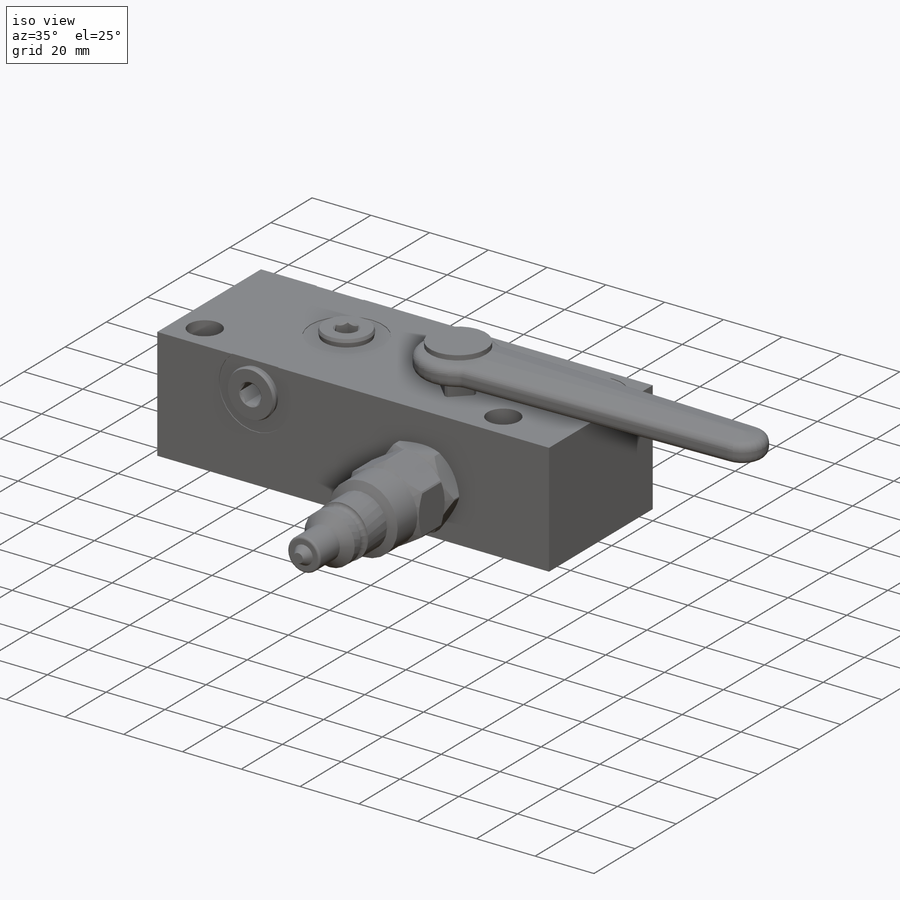
[diagram: iso view]
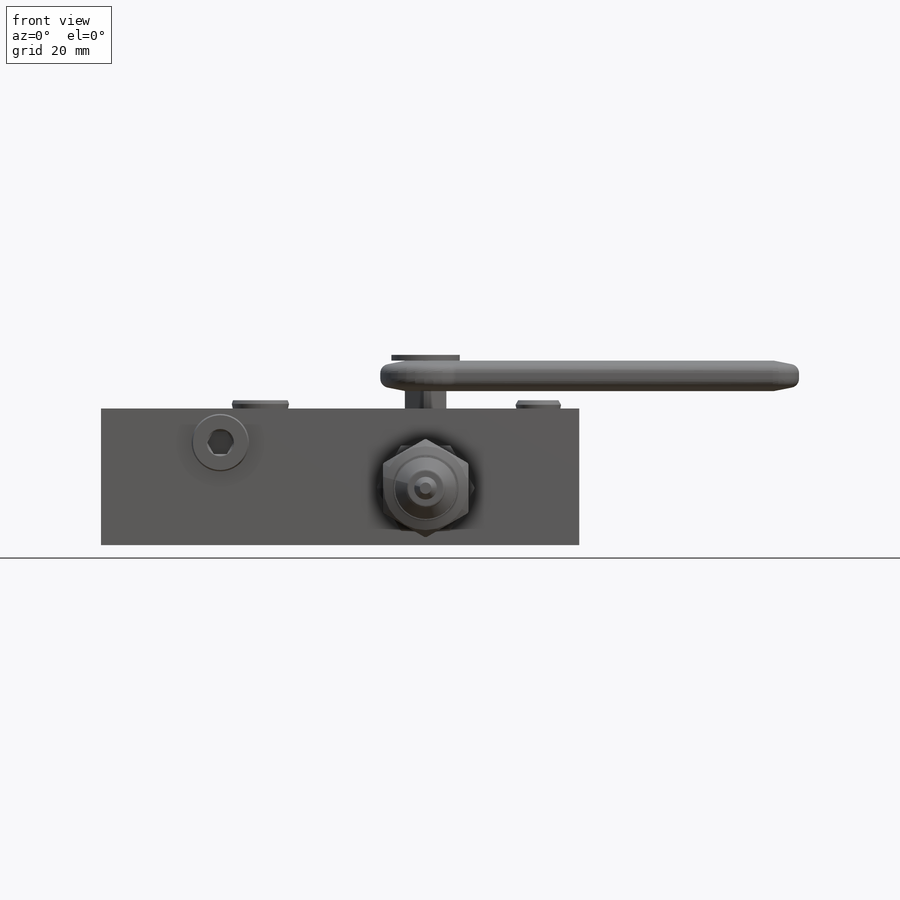
[diagram: front view]
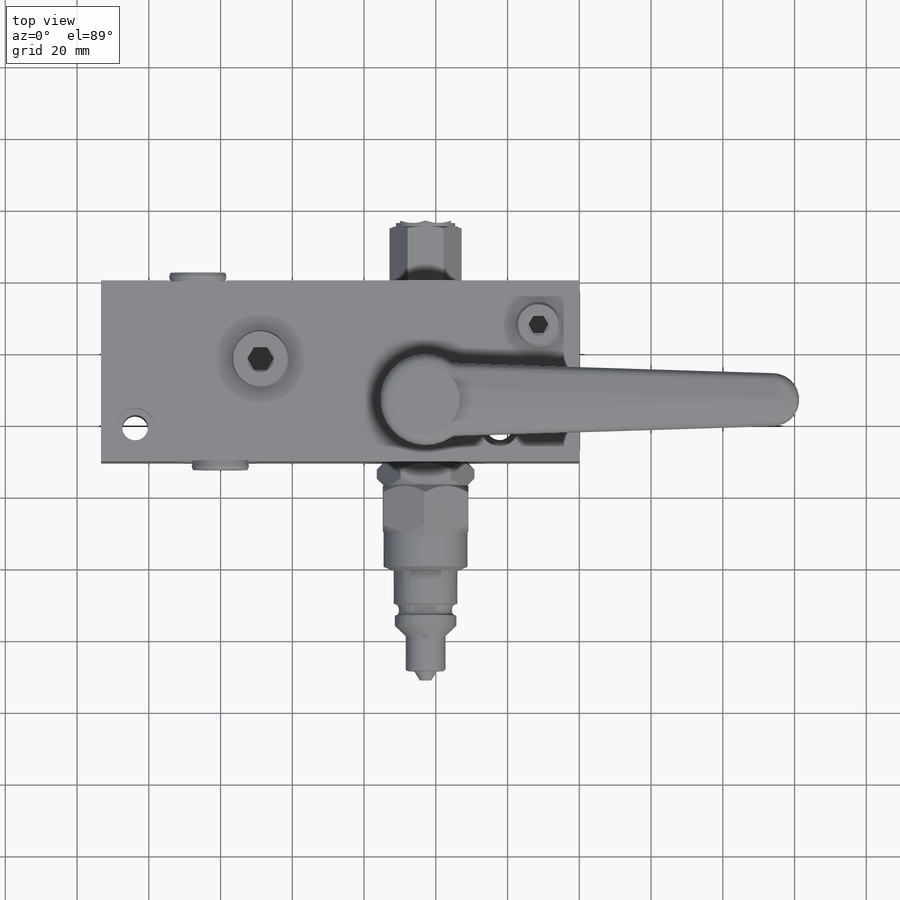
[diagram: top view]
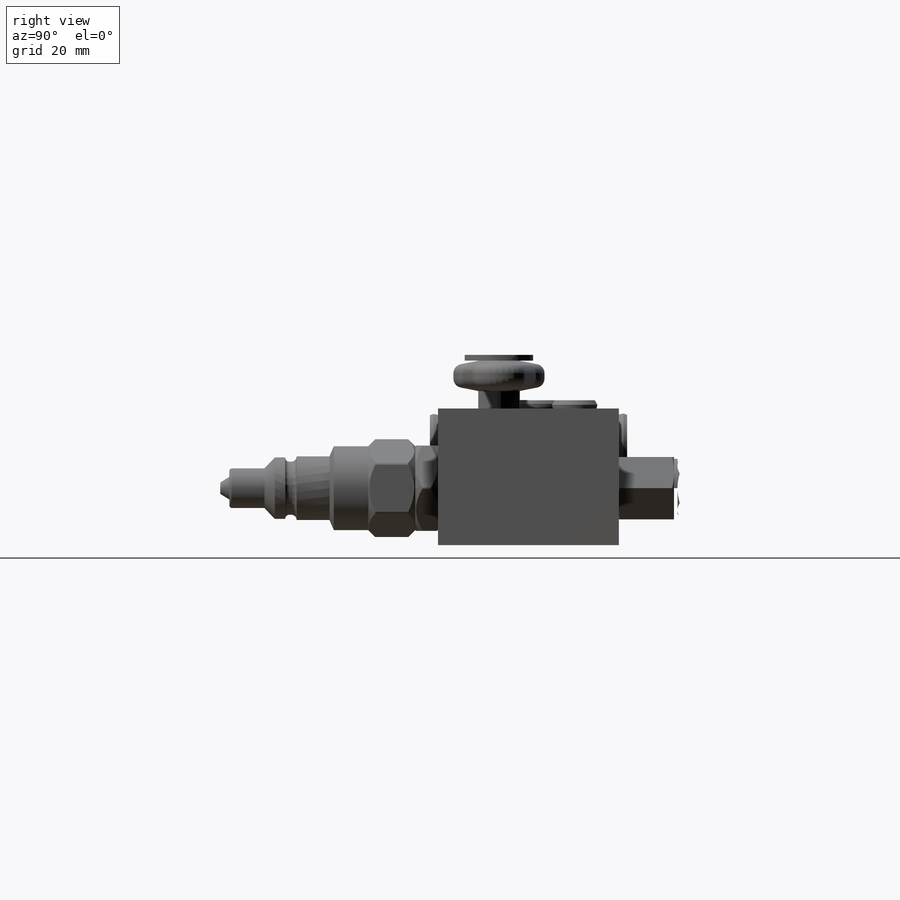
[diagram: right view]
SOLIDWORKS PART (.sldprt)
format: sldprt  version: not decoded by parser v0  size: 1,888,256 bytes
history: native  units: mm
features: sketch x22, move_body x19, cut_revolve x10, hole x7, extrude x6, plane x2, fillet x2, chamfer x2, material x1, revolve x1 + 10 further entries (+52 scaffold rows collapsed; 50 parser-record rows omitted)
feature tree (184):
  scaffold x52  (default folders/planes/origin — collapsed)
  material  "Material <not specified>"
  sketch  "Sketch1"  dims[c1.D1=~50.410315mm c1.D2=~147.447389mm c2.D1=133.35mm c2.D2=50.419mm]
  extrude  "Boss-Extrude1"  Depth=38.1mm
  hole  "CBORE for 1/4 Socket Head Cap Screw1"  Diameter=7.14248mm Depth=38.1mm
  sketch  "Sketch3"  dims[D1=9.525mm D2=101.6mm D3=9.525mm]
  sketch  "Sketch4"  dims[hole-wizard template sketch: 42 standard entries collapsed; hole parameters kept: c12.Thru Hole Depth=38.1mm c12.C'Bore Dia.=10.7188mm c12.C'Bore Depth=6.477mm]
  hole  "SAE 6 Spot Face"  Diameter=7.62mm Depth=8.89mm
  sketch  "Sketch6"  dims[D1=28.575mm D2=38.1mm D3=121.92mm D4=44.45mm]
  sketch  "Sketch7"  dims[hole-wizard template sketch: 33 standard entries collapsed; hole parameters kept: c8.Drill Angle=118.0deg]
  hole  "SAE 4 Spot Face"  Diameter=6.35mm Depth=6.985mm
  sketch  "Sketch9"  dims[D1=121.92mm D2=38.1mm]
  sketch  "Sketch8"  dims[hole-wizard template sketch: 29 standard entries collapsed; hole parameters kept: c8.Hole Depth=6.985mm c8.C'Bore Dia.=19.05mm c8.C'Bore Depth=0.254mm c8.D5=~14.816244mm c8.Drill Angle=118.0deg]
  hole  "SAE 6 Spot Face2"  Diameter=7.62mm Depth=8.89mm
  sketch  "Sketch11"  dims[D1=38.0746mm D2=23.7998mm]
  sketch  "Sketch10"  dims[hole-wizard template sketch: 33 standard entries collapsed; hole parameters kept: c8.Drill Angle=118.0deg]
  hole  "SAE 6 Spot Face3"  Diameter=7.62mm Depth=8.89mm
  sketch  "Sketch13"  dims[D1=9.398mm D2=22.225mm D3=90.5002mm D4=27.0002mm]
  sketch  "Sketch12"  dims[hole-wizard template sketch: 33 standard entries collapsed; hole parameters kept: c8.Drill Angle=118.0deg]
  hole  "SAE 6 Spot Face4"  Diameter=7.62mm Depth=8.89mm
  sketch  "Sketch15"  dims[D1=33.274mm D2=9.525mm]
  sketch  "Sketch14"  dims[hole-wizard template sketch: 33 standard entries collapsed; hole parameters kept: c8.Drill Angle=118.0deg]
  hole  "QD Port"  Diameter=18.161mm Depth=0.254mm
  sketch  "Sketch17"  dims[D1=22.225mm D2=90.5002mm]
  sketch  "Sketch16"  dims[hole-wizard template sketch: 46 standard entries collapsed; hole parameters kept: c15.Hole Dia.=18.161mm c15.Hole Depth=0.254mm c15.D3=~14.816244mm c15.Drill Angle=180.0deg]
  plane  "Plane1"  Offset=15.875mm
  sketch  "Sketch18"  dims[c1.D16=1.4224mm c1.D17=1.1176mm c1.D18=0.762mm c1.D1=~38.816139mm c1.D2=~6.943626mm c2.D1=60.96mm c2.D2=23.368mm c2.D3=29.3116mm c2.D4=30.5054mm c2.D5=39.6748mm c2.D6=17.7546mm c2.D7=17.145mm c2.D8=14.859mm c2.D9=42.8498mm c2.D10=45.72mm c2.D11=48.641mm c2.D12=58.42mm c2.D13=11.0744mm c2.D14=6.35mm c2.D15=3.175mm]
  revolve  "Revolve1"  Angle=360deg
  sketch  "Sketch19"  dims[D1=23.7998mm]
  extrude  "Boss-Extrude2"  Depth=6.35mm
  sketch  "Sketch20"  dims[D1=23.876mm]
  extrude  "Boss-Extrude3"  Depth=13.081mm
  sketch  "Sketch21"  dims[c1.D1=23.368mm c1.D2=27.2542mm c1.D3=~2.098631mm c2.D3=45.0deg c2.D4=13.081mm c2.D5=27.94mm]
  cut_revolve  "Cut-Revolve1"  Angle=360deg
  "ilc306011663"
  parser-record x50  (decoder bookkeeping rows leaked as tree rows — omitted from the tree; the rows remain in map.json)
  move_body  "Body-Move/Copy12"
  cut_revolve  "ilc306011664"  [1 undecoded]
  "Axes7"
  move_body  "Body-Move/Copy14"
  move_body  "Concentric7"
  sketch  "Sketch22"  dims[c1.D1=~15.193092mm c1.D3=11.6078mm c2.D1=16.9926mm c2.D2=90.5002mm c2.D4=~12.829427mm c2.D5=~8.543008mm c3.D4=7.125mm c4.D4=~2.509266deg c5.D4=~7.118168mm c6.D4=45.0deg c6.D5=~5.038135mm c7.D5=90.0deg c7.D6=8.89mm]
  extrude  "Boss-Extrude4"  Depth=14.9352mm
  plane  "Plane2"  Offset=5.8547mm
  sketch  "Sketch23"  dims[c1.D1=~30.458536mm c1.D3=25.4mm c1.D5=7.3914mm c2.D1=~14.16314mm c2.D2=~86.577906mm c3.D1=96.774mm c3.D2=20.32mm c3.D4=14.7828mm c4.D1=96.774mm]
  extrude  "Boss-Extrude5"  Depth=4.2545mm
  fillet  "Fillet1"  Radius=2.54mm
  chamfer  "Chamfer1"  Distance=1.397mm
  chamfer  "Chamfer2"  Distance=7.112mm
  fillet  "Fillet4"  Radius=2.54mm
  sketch  "Sketch24"  dims[D1=19.05mm]
  extrude  "Boss-Extrude6"  Depth=1.6002mm
  cut_revolve  "ilc30601166"  [1 undecoded]
  "Axes8"
  move_body  "Body-Move/Copy16"
  move_body  "Concentric8"
  cut_revolve  "ilc30601144"  [1 undecoded]
  "Axes10"
  move_body  "Body-Move/Copy20"
  move_body  "Concentric10"
  cut_revolve  "ilc30801264"  [1 undecoded]
  "Axes12"
  move_body  "Body-Move/Copy24"
  move_body  "Concentric12"
  cut_revolve  "ilc30231244"  [1 undecoded]
  "Axes13"
  move_body  "Body-Move/Copy26"
  move_body  "Concentric13"
  cut_revolve  "ilc306011442"  [1 undecoded]
  "Axes14"
  move_body  "Body-Move/Copy28"
  move_body  "Concentric14"
  cut_revolve  "ilc72212162"  [1 undecoded]
  "Axes15"
  move_body  "Body-Move/Copy30"
  move_body  "Concentric15"
  cut_revolve  "ilc21410004"  [1 undecoded]
  "Axes17"
  move_body  "Body-Move/Copy34"
  move_body  "Concentric17"
  cut_revolve  "ilc10101401"  [1 undecoded]
  "Axes18"
  move_body  "Body-Move/Copy36"
  move_body  "Concentric18"
decode coverage: 41 of 69 modeling features carry decoded parameters; 10 rows unclassified (native names shown)
note: ~ marks probable driven/reference dimensions
note: 9 parameter values undecoded
summary: no parameter record found for 9 features; Diameter pulled from absorbed wizard sketch
note: suppression state not decoded; provenance and decode notes live in map.json
